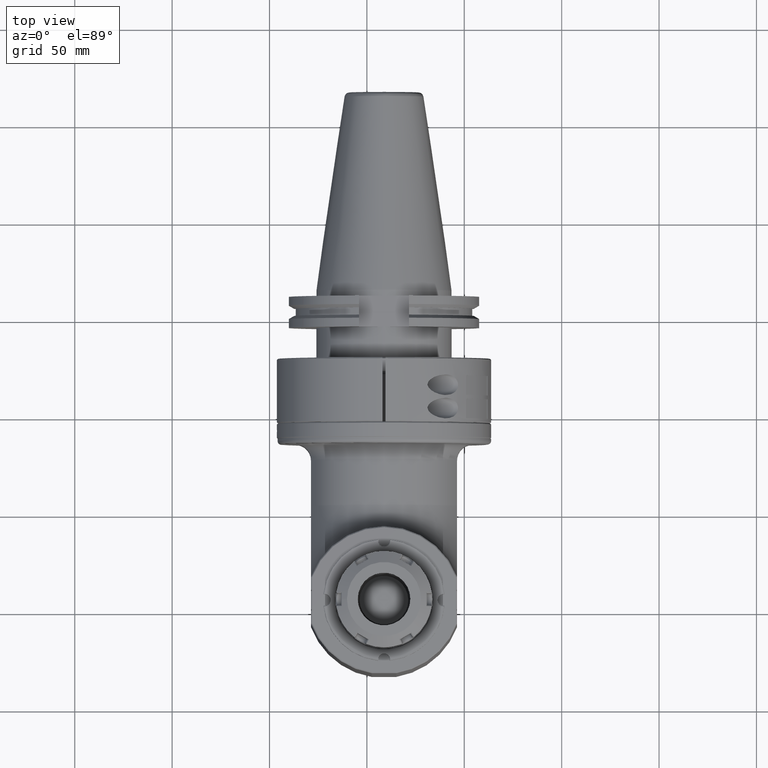
[diagram: clean part render]
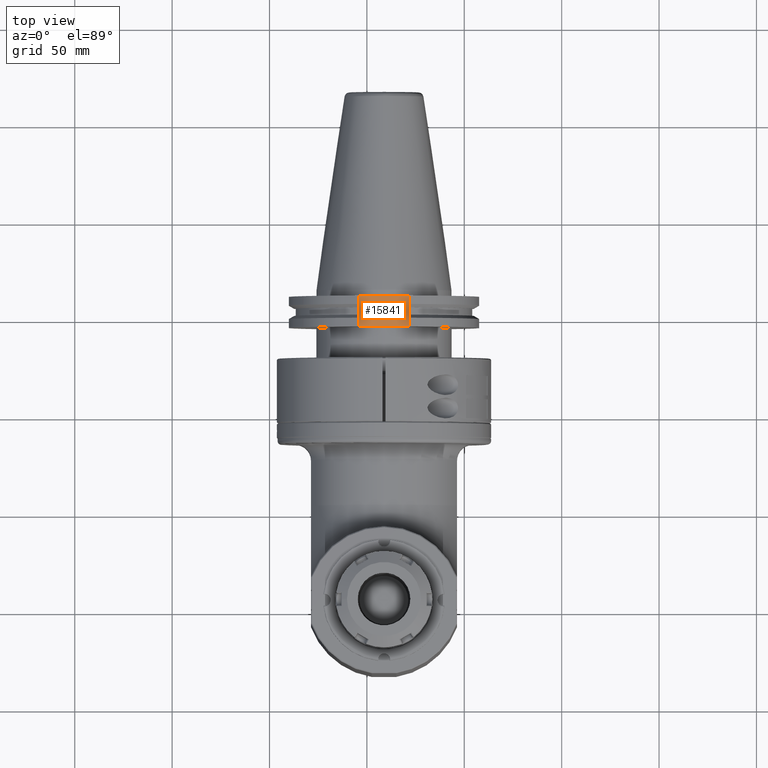
[diagram: same view with one face highlighted and labeled with its STEP entity id]
A machine part, top view. The second image highlights one B-rep face of the part: STEP entity #15841.
In plain terms, the highlighted planar face has unit normal (0, -0, -1).
Its self-contained STEP definition (entity closure, byte-faithful):
#1200=PLANE('',#17376);
#2064=FACE_OUTER_BOUND('',#3022,.T.);
#3022=EDGE_LOOP('',(#14706,#14707,#14708,#14709));
#4957=LINE('',#29903,#6279);
#4977=LINE('',#29965,#6299);
#4984=LINE('',#30002,#6306);
#4985=LINE('',#30004,#6307);
#6279=VECTOR('',#21567,25.7);
#6299=VECTOR('',#21601,25.7);
#6306=VECTOR('',#21640,15.9);
#6307=VECTOR('',#21643,15.9);
#7775=VERTEX_POINT('',#29900);
#7776=VERTEX_POINT('',#29902);
#7798=VERTEX_POINT('',#29962);
#7799=VERTEX_POINT('',#29964);
#10072=EDGE_CURVE('',#7775,#7776,#4957,.T.);
#10099=EDGE_CURVE('',#7799,#7798,#4977,.T.);
#10116=EDGE_CURVE('',#7775,#7799,#4984,.T.);
#10117=EDGE_CURVE('',#7776,#7798,#4985,.T.);
#14706=ORIENTED_EDGE('',*,*,#10099,.T.);
#14707=ORIENTED_EDGE('',*,*,#10117,.F.);
#14708=ORIENTED_EDGE('',*,*,#10072,.F.);
#14709=ORIENTED_EDGE('',*,*,#10116,.T.);
#15841=ADVANCED_FACE('',(#2064),#1200,.F.);
#17376=AXIS2_PLACEMENT_3D('',#30003,#21641,#21642);
#21567=DIRECTION('',(1.,0.,0.));
#21601=DIRECTION('',(1.,0.,0.));
#21640=DIRECTION('',(0.,-1.,0.));
#21641=DIRECTION('center_axis',(0.,0.,-1.));
#21642=DIRECTION('ref_axis',(-1.,0.,0.));
#21643=DIRECTION('',(0.,-1.,0.));
#29900=CARTESIAN_POINT('',(-12.85,64.8,35.3));
#29902=CARTESIAN_POINT('',(12.85,64.8,35.3));
#29903=CARTESIAN_POINT('',(-12.85,64.8,35.3));
#29962=CARTESIAN_POINT('',(12.85,48.9,35.3));
#29964=CARTESIAN_POINT('',(-12.85,48.9,35.3));
#29965=CARTESIAN_POINT('',(-12.85,48.9,35.3));
#30002=CARTESIAN_POINT('',(-12.85,64.8,35.3));
#30003=CARTESIAN_POINT('Origin',(12.85,64.8,35.3));
#30004=CARTESIAN_POINT('',(12.85,64.8,35.3));